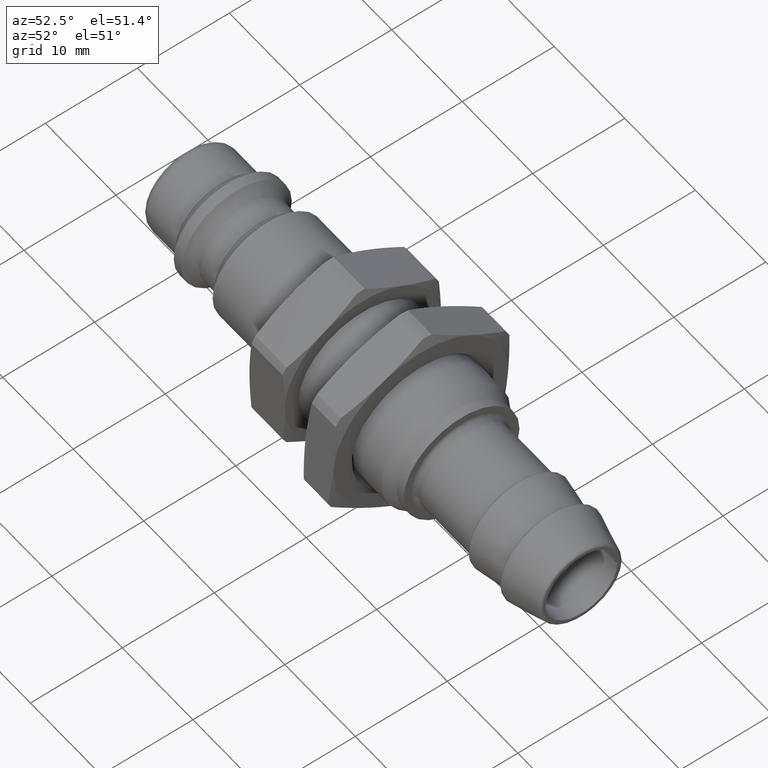
[diagram: clean part render]
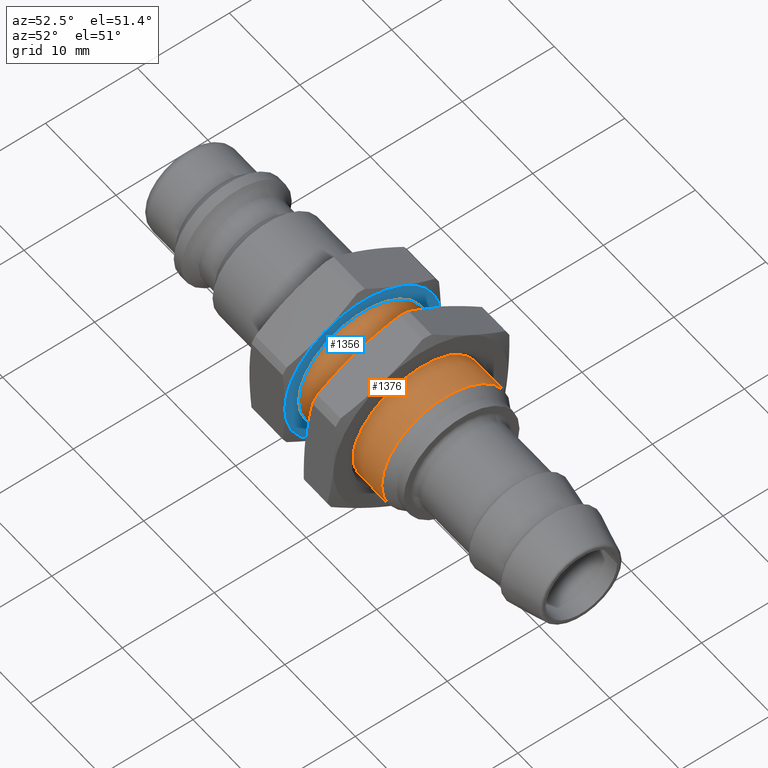
[diagram: same view with the hole feature highlighted: cylindrical wall and planar end face, labeled with their STEP entity ids]
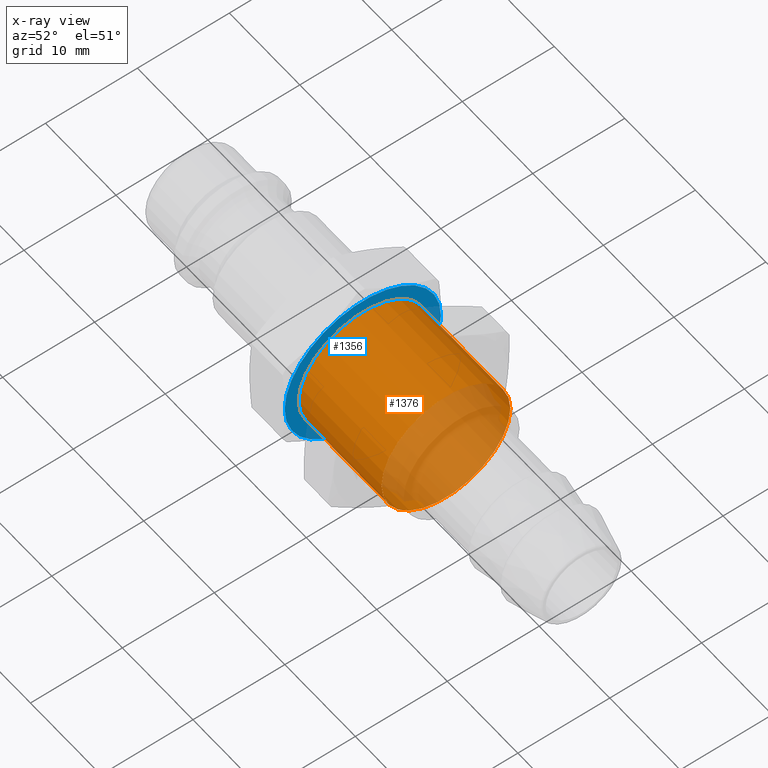
[diagram: x-ray of the same camera — body ghosted, the hole faces saturated]
A machine part, auxiliary view. The highlighted faces form one hole feature of diameter 14 mm: the cylindrical wall (entity #1376, orange) and its adjacent planar end face (entity #1356, blue) — they share a circular edge in the B-rep.
The next image is the same camera in x-ray (body ghosted, the hole faces saturated) — the bore reads through the body.
Wall:
#1345=CARTESIAN_POINT('',(25.000000000000004,7.000000000000001,0.0));
#1346=VERTEX_POINT('',#1345);
#1347=CARTESIAN_POINT('',(25.000000000000004,0.0,0.0));
#1348=DIRECTION('',(1.0,0.0,0.0));
#1349=DIRECTION('',(0.0,1.0,0.0));
#1350=AXIS2_PLACEMENT_3D('',#1347,#1348,#1349);
#1351=CIRCLE('',#1350,7.000000000000001);
#1352=EDGE_CURVE('',#1346,#1346,#1351,.T.);
#1357=CARTESIAN_POINT('',(30.893782217350896,0.0,0.0));
#1358=DIRECTION('',(1.0,0.0,0.0));
#1359=DIRECTION('',(0.0,1.0,0.0));
#1360=AXIS2_PLACEMENT_3D('',#1357,#1358,#1359);
#1361=CYLINDRICAL_SURFACE('',#1360,7.000000000000001);
#1362=CARTESIAN_POINT('',(36.787564434701785,7.000000000000001,0.0));
#1363=VERTEX_POINT('',#1362);
#1364=CARTESIAN_POINT('',(36.787564434701785,0.0,0.0));
#1365=DIRECTION('',(1.0,0.0,0.0));
#1366=DIRECTION('',(0.0,1.0,0.0));
#1367=AXIS2_PLACEMENT_3D('',#1364,#1365,#1366);
#1368=CIRCLE('',#1367,7.000000000000001);
#1369=EDGE_CURVE('',#1363,#1363,#1368,.T.);
#1370=ORIENTED_EDGE('',*,*,#1369,.F.);
#1371=EDGE_LOOP('',(#1370));
#1372=FACE_OUTER_BOUND('',#1371,.T.);
#1373=ORIENTED_EDGE('',*,*,#1352,.T.);
#1374=EDGE_LOOP('',(#1373));
#1375=FACE_BOUND('',#1374,.T.);
#1376=ADVANCED_FACE('',(#1372,#1375),#1361,.T.);
End face:
#452=CARTESIAN_POINT('',(25.000000000000004,4.249999999999994,-7.361215932167733));
#453=VERTEX_POINT('',#452);
#534=CARTESIAN_POINT('',(25.000000000000004,-4.250000000000004,-7.361215932167728));
#535=VERTEX_POINT('',#534);
#616=CARTESIAN_POINT('',(25.000000000000004,-8.500000000000000,1.415534E-015));
#617=VERTEX_POINT('',#616);
#698=CARTESIAN_POINT('',(25.000000000000004,-4.249999999999998,7.361215932167731));
#699=VERTEX_POINT('',#698);
#780=CARTESIAN_POINT('',(25.000000000000004,4.250000000000001,7.361215932167728));
#781=VERTEX_POINT('',#780);
#840=CARTESIAN_POINT('',(25.000000000000004,8.500000000000000,0.0));
#841=VERTEX_POINT('',#840);
#842=CARTESIAN_POINT('',(25.000000000000004,0.0,0.0));
#843=DIRECTION('',(1.0,0.0,0.0));
#844=DIRECTION('',(0.0,1.0,0.0));
#845=AXIS2_PLACEMENT_3D('',#842,#843,#844);
#846=CIRCLE('',#845,8.500000000000000);
#847=EDGE_CURVE('',#841,#781,#846,.T.);
#880=CARTESIAN_POINT('',(25.000000000000004,0.0,0.0));
#881=DIRECTION('',(1.0,0.0,0.0));
#882=DIRECTION('',(0.0,1.0,0.0));
#883=AXIS2_PLACEMENT_3D('',#880,#881,#882);
#884=CIRCLE('',#883,8.500000000000000);
#885=EDGE_CURVE('',#781,#699,#884,.T.);
#904=CARTESIAN_POINT('',(25.000000000000004,0.0,0.0));
#905=DIRECTION('',(1.0,0.0,0.0));
#906=DIRECTION('',(0.0,1.0,0.0));
#907=AXIS2_PLACEMENT_3D('',#904,#905,#906);
#908=CIRCLE('',#907,8.500000000000000);
#909=EDGE_CURVE('',#699,#617,#908,.T.);
#928=CARTESIAN_POINT('',(25.000000000000004,0.0,0.0));
#929=DIRECTION('',(1.0,0.0,0.0));
#930=DIRECTION('',(0.0,1.0,0.0));
#931=AXIS2_PLACEMENT_3D('',#928,#929,#930);
#932=CIRCLE('',#931,8.500000000000000);
#933=EDGE_CURVE('',#617,#535,#932,.T.);
#974=CARTESIAN_POINT('',(25.000000000000004,0.0,0.0));
#975=DIRECTION('',(1.0,0.0,0.0));
#976=DIRECTION('',(0.0,1.0,0.0));
#977=AXIS2_PLACEMENT_3D('',#974,#975,#976);
#978=CIRCLE('',#977,8.500000000000000);
#979=EDGE_CURVE('',#453,#841,#978,.T.);
#990=CARTESIAN_POINT('',(25.000000000000004,0.0,0.0));
#991=DIRECTION('',(1.0,0.0,0.0));
#992=DIRECTION('',(0.0,1.0,0.0));
#993=AXIS2_PLACEMENT_3D('',#990,#991,#992);
#994=CIRCLE('',#993,8.500000000000000);
#995=EDGE_CURVE('',#535,#453,#994,.T.);
#1332=CARTESIAN_POINT('',(25.000000000000004,7.750000000000002,0.0));
#1333=DIRECTION('',(1.0,0.0,0.0));
#1334=DIRECTION('',(0.0,0.0,-1.0));
#1335=AXIS2_PLACEMENT_3D('',#1332,#1333,#1334);
#1336=PLANE('',#1335);
#1337=ORIENTED_EDGE('',*,*,#847,.T.);
#1338=ORIENTED_EDGE('',*,*,#885,.T.);
#1339=ORIENTED_EDGE('',*,*,#909,.T.);
#1340=ORIENTED_EDGE('',*,*,#933,.T.);
#1341=ORIENTED_EDGE('',*,*,#995,.T.);
#1342=ORIENTED_EDGE('',*,*,#979,.T.);
#1343=EDGE_LOOP('',(#1337,#1338,#1339,#1340,#1341,#1342));
#1344=FACE_OUTER_BOUND('',#1343,.T.);
#1345=CARTESIAN_POINT('',(25.000000000000004,7.000000000000001,0.0));
#1346=VERTEX_POINT('',#1345);
#1347=CARTESIAN_POINT('',(25.000000000000004,0.0,0.0));
#1348=DIRECTION('',(1.0,0.0,0.0));
#1349=DIRECTION('',(0.0,1.0,0.0));
#1350=AXIS2_PLACEMENT_3D('',#1347,#1348,#1349);
#1351=CIRCLE('',#1350,7.000000000000001);
#1352=EDGE_CURVE('',#1346,#1346,#1351,.T.);
#1353=ORIENTED_EDGE('',*,*,#1352,.F.);
#1354=EDGE_LOOP('',(#1353));
#1355=FACE_BOUND('',#1354,.T.);
#1356=ADVANCED_FACE('',(#1344,#1355),#1336,.T.);